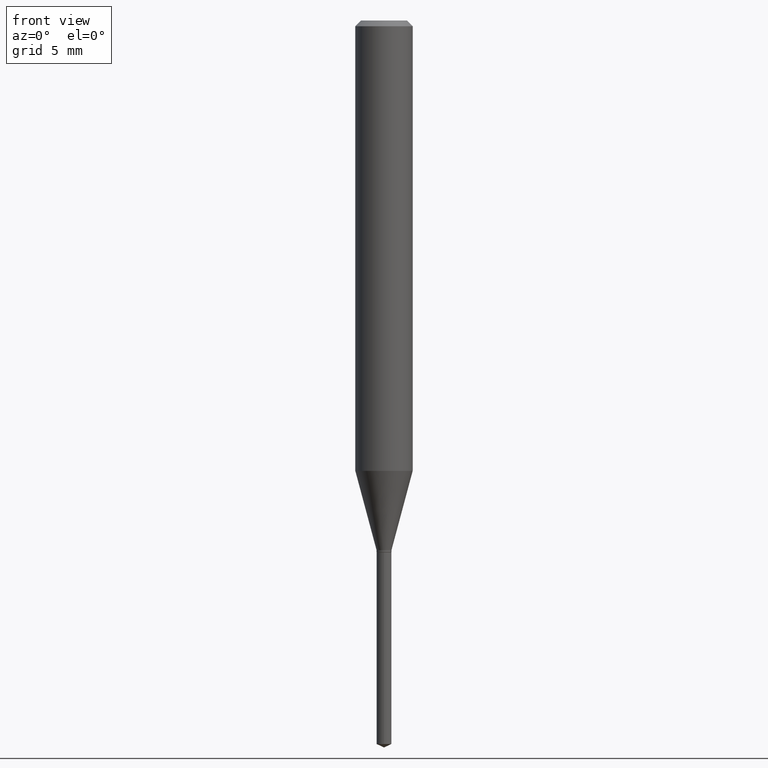
[diagram: clean part render]
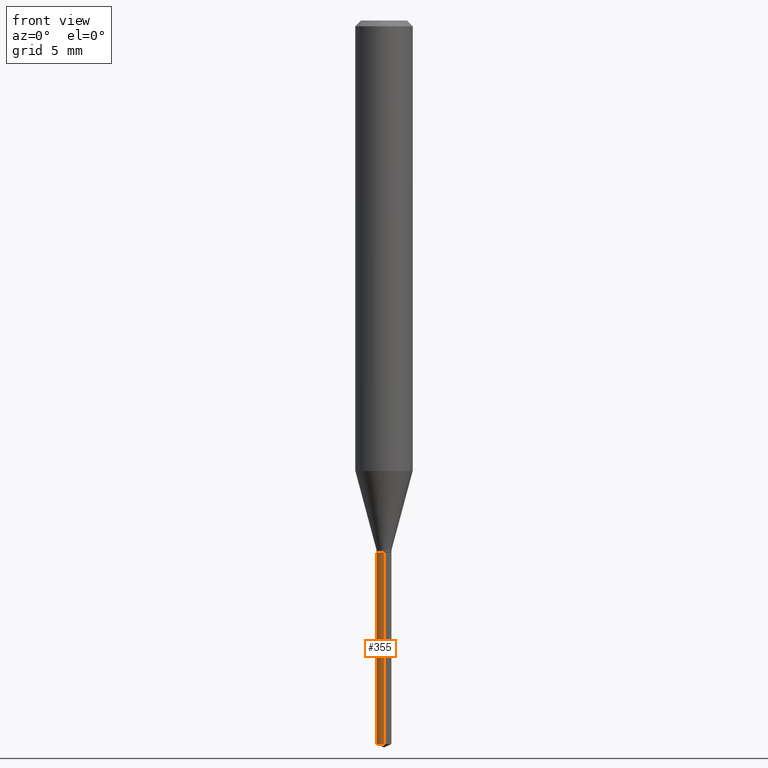
[diagram: same view with one face highlighted and labeled with its STEP entity id]
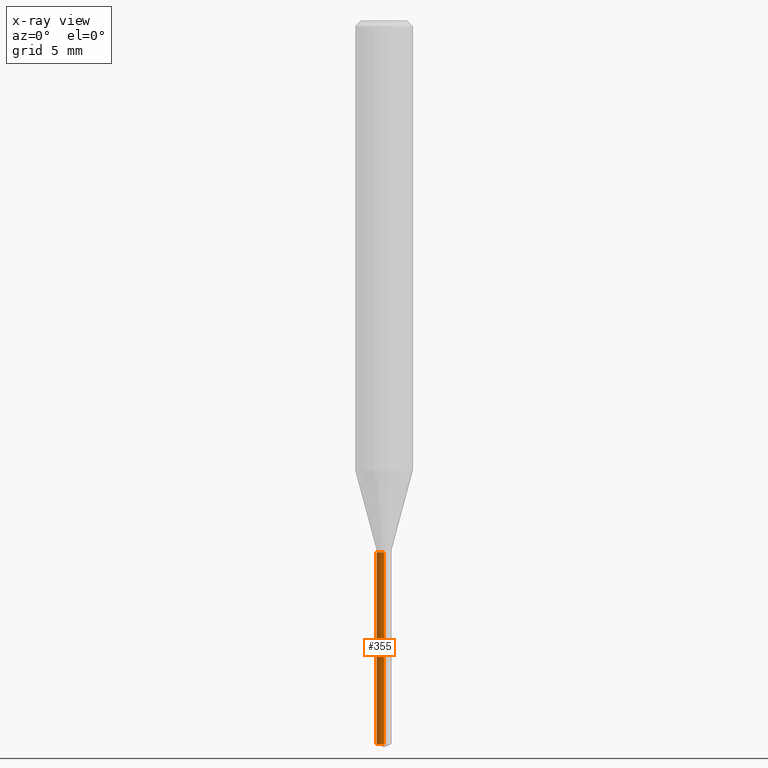
[diagram: x-ray of the same camera — body ghosted, the highlighted face saturated]
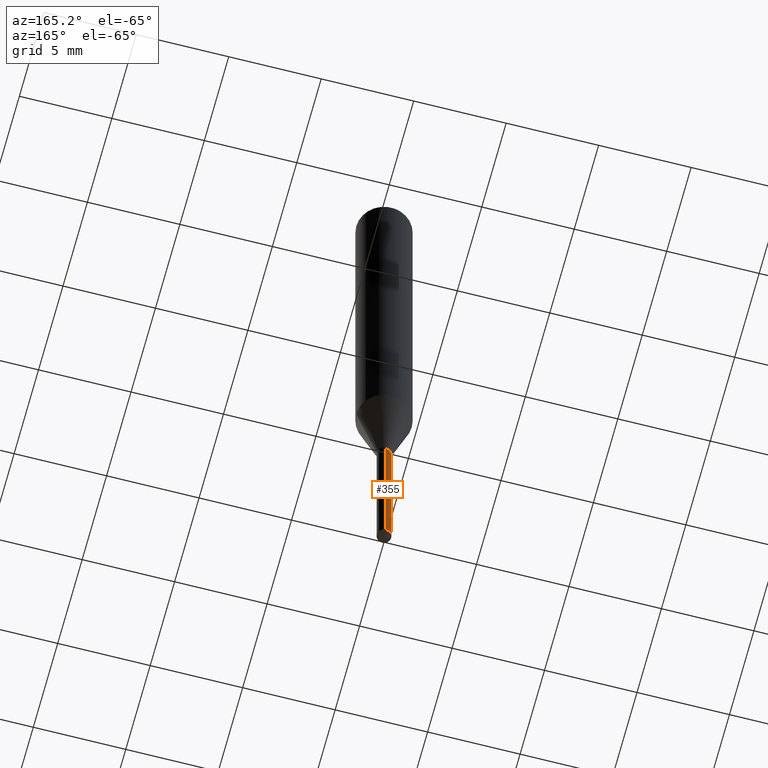
[diagram: same view with one face highlighted and labeled with its STEP entity id]
A machine part, front view. The second image highlights one B-rep face of the part: STEP entity #355.
The next image is the same camera in x-ray: the body ghosted, the highlighted face saturated — about 0% of this face is hidden behind the body in this view.
A second angle (auxiliary view) of the same face is appended — the face is thin or edge-on in the first view.
In plain terms, the highlighted cylindrical surface (edge-blend (fillet) strip) has radius 0.3899 mm, axis along (-0, 0, 1).
Its self-contained STEP definition (entity closure, byte-faithful):
#13 = DIRECTION ( 'NONE',  ( -2.445470214571802116E-29, 3.491479321953280158E-15, 1.000000000000000000 ) ) ;
#16 = CARTESIAN_POINT ( 'NONE',  ( 2.676565608369631794E-29, -3.821426325363822773E-15, -1.094499999999999806 ) ) ;
#18 = VECTOR ( 'NONE', #258, 39.37007874015748143 ) ;
#50 = CARTESIAN_POINT ( 'NONE',  ( -1.071884771024477540E-16, -0.01535000000000519803, -1.488942177447320825 ) ) ;
#68 = ORIENTED_EDGE ( 'NONE', *, *, #455, .T. ) ;
#75 = EDGE_LOOP ( 'NONE', ( #251, #285, #68, #255 ) ) ;
#76 = CARTESIAN_POINT ( 'NONE',  ( 1.090683099392117581E-16, 0.01534999999999479663, -1.488942177447320825 ) ) ;
#82 = CARTESIAN_POINT ( 'NONE',  ( -1.071884771024574298E-16, -0.01535000000000382239, -1.094499999999999806 ) ) ;
#101 = EDGE_CURVE ( 'NONE', #107, #256, #457, .T. ) ;
#104 = DIRECTION ( 'NONE',  ( -6.982962677686265922E-15, -1.000000000000000000, 0.000000000000000000 ) ) ;
#107 = VERTEX_POINT ( 'NONE', #76 ) ;
#113 = AXIS2_PLACEMENT_3D ( 'NONE', #180, #139, #104 ) ;
#127 = DIRECTION ( 'NONE',  ( -6.982962677686265922E-15, -1.000000000000000000, 0.000000000000000000 ) ) ;
#139 = DIRECTION ( 'NONE',  ( -2.445470214571802116E-29, 3.491479321953280158E-15, 1.000000000000000000 ) ) ;
#180 = CARTESIAN_POINT ( 'NONE',  ( 2.676565608369631794E-29, -3.821426325363822773E-15, -1.094499999999999806 ) ) ;
#185 = CYLINDRICAL_SURFACE ( 'NONE', #113, 0.01535000000000000080 ) ;
#189 = FACE_OUTER_BOUND ( 'NONE', #75, .T. ) ;
#190 = VERTEX_POINT ( 'NONE', #199 ) ;
#199 = CARTESIAN_POINT ( 'NONE',  ( -1.071884771024574298E-16, -0.01535000000000382239, -1.094499999999999806 ) ) ;
#251 = ORIENTED_EDGE ( 'NONE', *, *, #373, .F. ) ;
#253 = CIRCLE ( 'NONE', #422, 0.01535000000000000080 ) ;
#255 = ORIENTED_EDGE ( 'NONE', *, *, #443, .F. ) ;
#256 = VERTEX_POINT ( 'NONE', #50 ) ;
#258 = DIRECTION ( 'NONE',  ( -2.445470214571802396E-29, 3.491479321953280158E-15, 1.000000000000000000 ) ) ;
#259 = VERTEX_POINT ( 'NONE', #316 ) ;
#285 = ORIENTED_EDGE ( 'NONE', *, *, #101, .T. ) ;
#298 = VECTOR ( 'NONE', #315, 39.37007874015748143 ) ;
#300 = CARTESIAN_POINT ( 'NONE',  ( 1.090683099392021315E-16, 0.01534999999999617747, -1.094499999999999806 ) ) ;
#315 = DIRECTION ( 'NONE',  ( -2.445470214571802396E-29, 3.491479321953280158E-15, 1.000000000000000000 ) ) ;
#316 = CARTESIAN_POINT ( 'NONE',  ( 1.090683099392118567E-16, 0.01534999999999617920, -1.094499999999999806 ) ) ;
#318 = LINE ( 'NONE', #82, #298 ) ;
#340 = CARTESIAN_POINT ( 'NONE',  ( 3.641162204687900496E-29, -5.198613031627369292E-15, -1.488942177447320825 ) ) ;
#345 = DIRECTION ( 'NONE',  ( -6.982962677686265922E-15, -1.000000000000000000, 0.000000000000000000 ) ) ;
#355 = ADVANCED_FACE ( 'NONE', ( #189 ), #185, .T. ) ;
#373 = EDGE_CURVE ( 'NONE', #107, #259, #484, .T. ) ;
#419 = DIRECTION ( 'NONE',  ( -2.445470214571802116E-29, 3.491479321953280158E-15, 1.000000000000000000 ) ) ;
#422 = AXIS2_PLACEMENT_3D ( 'NONE', #16, #13, #127 ) ;
#443 = EDGE_CURVE ( 'NONE', #259, #190, #253, .T. ) ;
#451 = AXIS2_PLACEMENT_3D ( 'NONE', #340, #419, #345 ) ;
#455 = EDGE_CURVE ( 'NONE', #256, #190, #318, .T. ) ;
#457 = CIRCLE ( 'NONE', #451, 0.01535000000000000080 ) ;
#484 = LINE ( 'NONE', #300, #18 ) ;